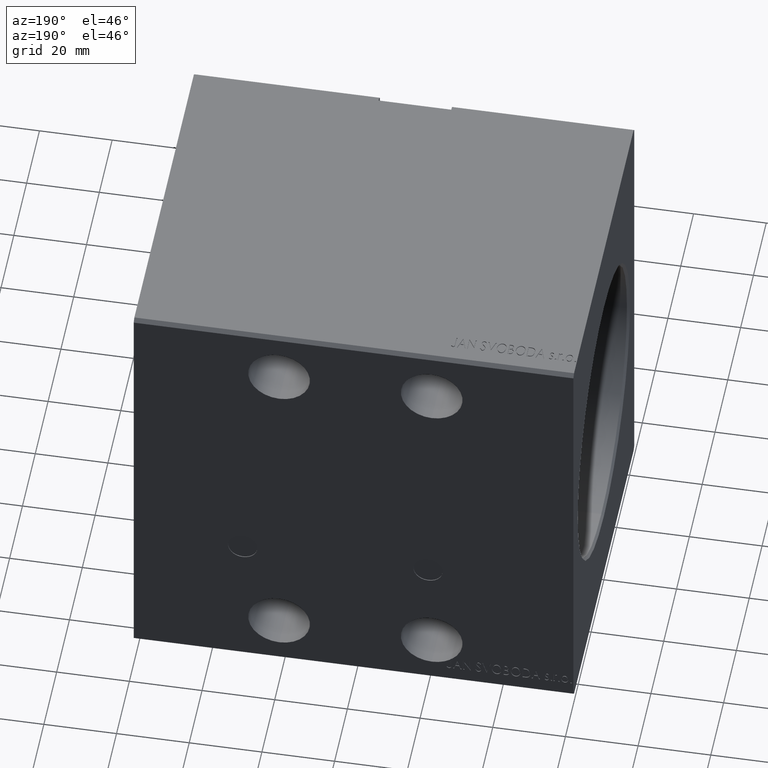
[diagram: clean part render]
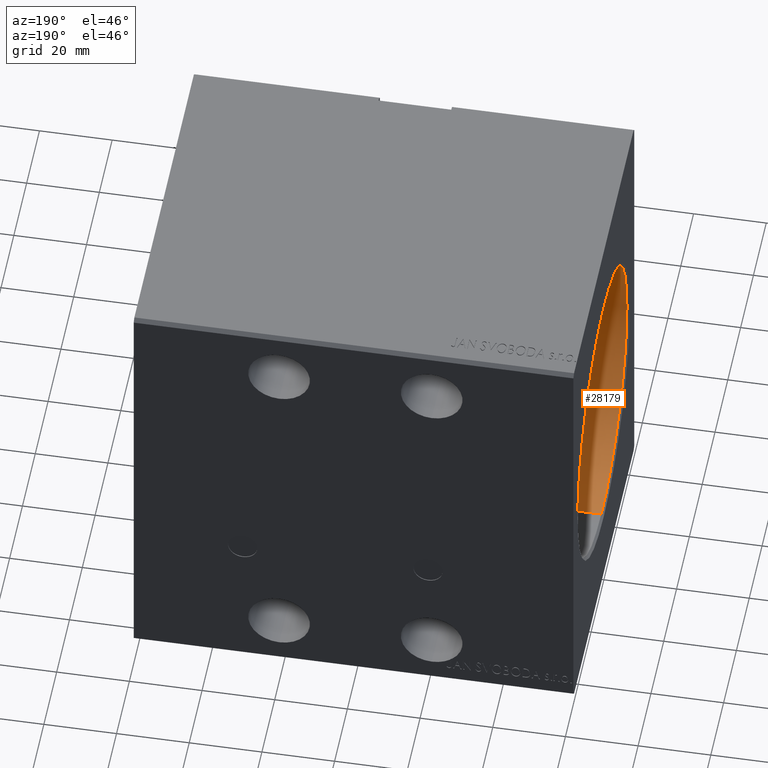
[diagram: same view with one face highlighted and labeled with its STEP entity id]
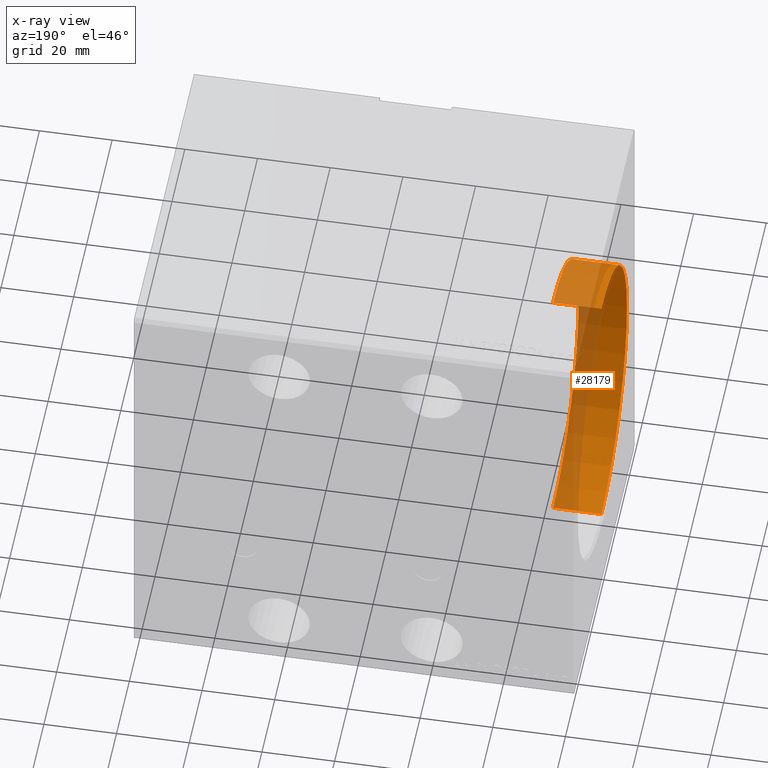
[diagram: x-ray of the same camera — body ghosted, the highlighted face saturated]
A machine part, auxiliary view. The second image highlights one B-rep face of the part: STEP entity #28179.
The next image is the same camera in x-ray: the body ghosted, the highlighted face saturated — about 44% of this face is hidden behind the body in this view.
In plain terms, the highlighted cylindrical surface (partial cylindrical patch) has radius 40 mm, axis along (-1, -0, -0).
Its self-contained STEP definition (entity closure, byte-faithful):
#625 = CARTESIAN_POINT ( 'NONE',  ( 14.00000000000000000, 0.000000000000000000, 40.00000000000000000 ) ) ;
#4156 = CARTESIAN_POINT ( 'NONE',  ( 0.7000000000000130562, 0.000000000000000000, 0.000000000000000000 ) ) ;
#4231 = DIRECTION ( 'NONE',  ( -1.000000000000000000, -0.000000000000000000, -0.000000000000000000 ) ) ;
#7274 = AXIS2_PLACEMENT_3D ( 'NONE', #18574, #14727, #31577 ) ;
#8368 = CIRCLE ( 'NONE', #10393, 40.00000000000000000 ) ;
#8753 = ORIENTED_EDGE ( 'NONE', *, *, #23673, .F. ) ;
#10393 = AXIS2_PLACEMENT_3D ( 'NONE', #4156, #20151, #29967 ) ;
#12046 = VERTEX_POINT ( 'NONE', #22905 ) ;
#12597 = VERTEX_POINT ( 'NONE', #33675 ) ;
#13617 = LINE ( 'NONE', #17245, #24041 ) ;
#13663 = VECTOR ( 'NONE', #42013, 1000.000000000000000 ) ;
#14727 = DIRECTION ( 'NONE',  ( -1.000000000000000000, -0.000000000000000000, -0.000000000000000000 ) ) ;
#15243 = AXIS2_PLACEMENT_3D ( 'NONE', #38928, #20157, #42133 ) ;
#17245 = CARTESIAN_POINT ( 'NONE',  ( 14.00000000000000000, 4.898587196589413026E-15, -40.00000000000000000 ) ) ;
#18142 = FACE_OUTER_BOUND ( 'NONE', #40603, .T. ) ;
#18298 = EDGE_CURVE ( 'NONE', #12046, #12597, #32621, .T. ) ;
#18574 = CARTESIAN_POINT ( 'NONE',  ( 14.00000000000000000, 0.000000000000000000, 0.000000000000000000 ) ) ;
#18926 = EDGE_CURVE ( 'NONE', #32210, #12597, #8368, .T. ) ;
#20151 = DIRECTION ( 'NONE',  ( -1.000000000000000000, 0.000000000000000000, 0.000000000000000000 ) ) ;
#20157 = DIRECTION ( 'NONE',  ( -1.000000000000000000, 0.000000000000000000, 0.000000000000000000 ) ) ;
#20904 = ORIENTED_EDGE ( 'NONE', *, *, #18926, .T. ) ;
#21308 = ORIENTED_EDGE ( 'NONE', *, *, #21472, .T. ) ;
#21472 = EDGE_CURVE ( 'NONE', #25391, #32210, #13617, .T. ) ;
#22535 = CARTESIAN_POINT ( 'NONE',  ( 0.7000000000000130562, 4.898587196589413026E-15, -40.00000000000000000 ) ) ;
#22905 = CARTESIAN_POINT ( 'NONE',  ( 14.00000000000000000, 0.000000000000000000, 40.00000000000000000 ) ) ;
#23673 = EDGE_CURVE ( 'NONE', #25391, #12046, #37716, .T. ) ;
#24041 = VECTOR ( 'NONE', #4231, 1000.000000000000000 ) ;
#25391 = VERTEX_POINT ( 'NONE', #40667 ) ;
#28179 = ADVANCED_FACE ( 'NONE', ( #18142 ), #30937, .F. ) ;
#29967 = DIRECTION ( 'NONE',  ( 0.000000000000000000, 0.000000000000000000, -1.000000000000000000 ) ) ;
#30937 = CYLINDRICAL_SURFACE ( 'NONE', #7274, 40.00000000000000000 ) ;
#31577 = DIRECTION ( 'NONE',  ( 0.000000000000000000, 0.000000000000000000, 1.000000000000000000 ) ) ;
#32210 = VERTEX_POINT ( 'NONE', #22535 ) ;
#32621 = LINE ( 'NONE', #625, #13663 ) ;
#33675 = CARTESIAN_POINT ( 'NONE',  ( 0.7000000000000130562, 0.000000000000000000, 40.00000000000000000 ) ) ;
#34696 = ORIENTED_EDGE ( 'NONE', *, *, #18298, .F. ) ;
#37716 = CIRCLE ( 'NONE', #15243, 40.00000000000000000 ) ;
#38928 = CARTESIAN_POINT ( 'NONE',  ( 14.00000000000000000, 0.000000000000000000, 0.000000000000000000 ) ) ;
#40603 = EDGE_LOOP ( 'NONE', ( #8753, #21308, #20904, #34696 ) ) ;
#40667 = CARTESIAN_POINT ( 'NONE',  ( 14.00000000000000000, 4.898587196589413026E-15, -40.00000000000000000 ) ) ;
#42013 = DIRECTION ( 'NONE',  ( -1.000000000000000000, -0.000000000000000000, -0.000000000000000000 ) ) ;
#42133 = DIRECTION ( 'NONE',  ( 0.000000000000000000, 0.000000000000000000, 1.000000000000000000 ) ) ;